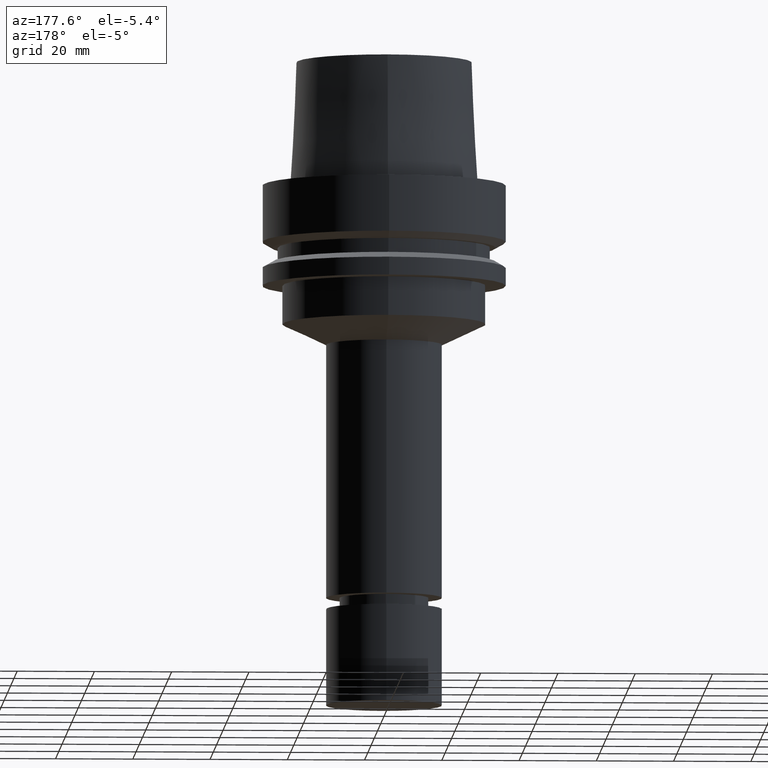
[diagram: clean part render]
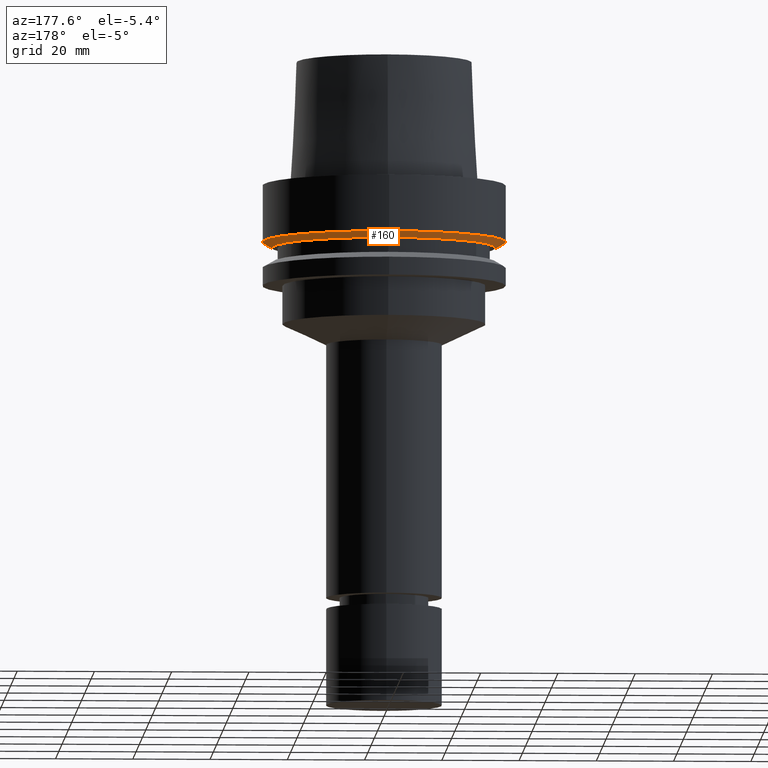
[diagram: same view with one face highlighted and labeled with its STEP entity id]
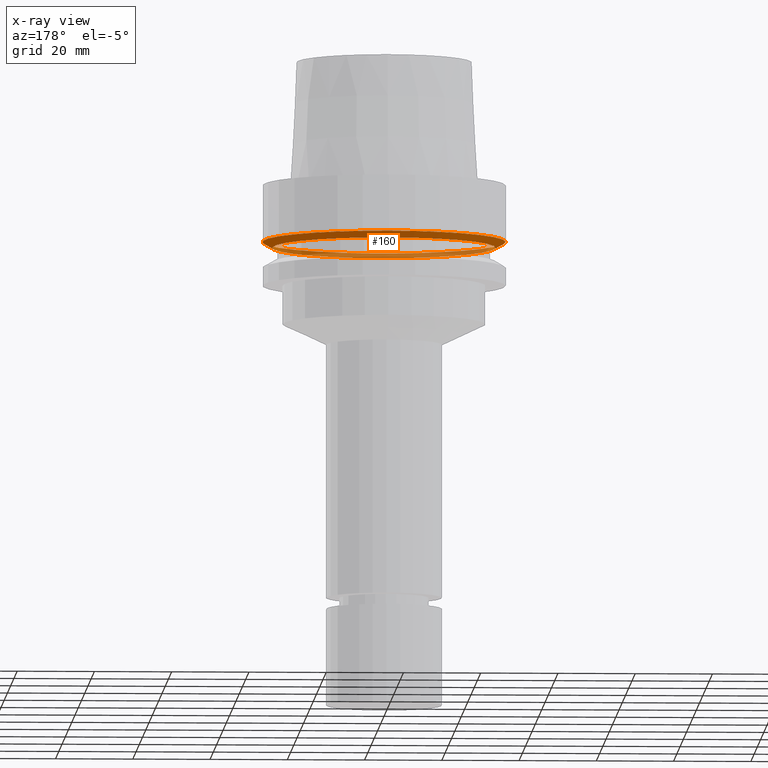
[diagram: x-ray of the same camera — body ghosted, the highlighted face saturated]
A machine part, auxiliary view. The second image highlights one B-rep face of the part: STEP entity #160.
The next image is the same camera in x-ray: the body ghosted, the highlighted face saturated — about 35% of this face is hidden behind the body in this view.
In plain terms, the highlighted conical surface has half-angle 60 deg.
Its self-contained STEP definition (entity closure, byte-faithful):
#84=EDGE_CURVE('Unnamed[1]',#223,#223,#224,.T.);
#86=EDGE_CURVE('Unnamed[1]',#226,#226,#227,.T.);
#160=ADVANCED_FACE('Unnamed[1]',(#336,#337),#338,.T.);
#223=VERTEX_POINT('',#417);
#224=CIRCLE('',#418,28.8975952641919);
#226=VERTEX_POINT('',#421);
#227=CIRCLE('',#422,31.5);
#336=FACE_BOUND('',#558,.T.);
#337=FACE_BOUND('',#559,.T.);
#338=CONICAL_SURFACE('',#560,30.1987976320959,1.04719755119657);
#417=CARTESIAN_POINT('',(9.87371481812551E-016,28.8975952641919,-16.125));
#418=AXIS2_PLACEMENT_3D('',#639,#640,#641);
#421=CARTESIAN_POINT('',(8.95369947681261E-016,31.5,-14.6225009252407));
#422=AXIS2_PLACEMENT_3D('',#642,#643,#644);
#558=EDGE_LOOP('',(#761));
#559=EDGE_LOOP('',(#762));
#560=AXIS2_PLACEMENT_3D('',#763,#764,#765);
#639=CARTESIAN_POINT('',(9.87371481812552E-016,1.9747429636251E-015,-16.125));
#640=DIRECTION('',(-6.12323399573677E-017,-1.22464679914735E-016,1.0));
#641=DIRECTION('',(-1.23259516440783E-032,1.0,1.22464679914735E-016));
#642=CARTESIAN_POINT('',(8.95369947681262E-016,1.79073989536252E-015,-14.6225009252407));
#643=DIRECTION('',(-6.12323399573677E-017,-1.22464679914735E-016,1.0));
#644=DIRECTION('',(-1.23259516440783E-032,1.0,1.22464679914735E-016));
#761=ORIENTED_EDGE('',*,*,#86,.F.);
#762=ORIENTED_EDGE('',*,*,#84,.T.);
#763=CARTESIAN_POINT('',(9.41370714746907E-016,1.88274142949381E-015,-15.3737504626203));
#764=DIRECTION('',(-6.12323399573677E-017,-1.22464679914735E-016,1.0));
#765=DIRECTION('',(-1.23259516440783E-032,1.0,1.22464679914735E-016));